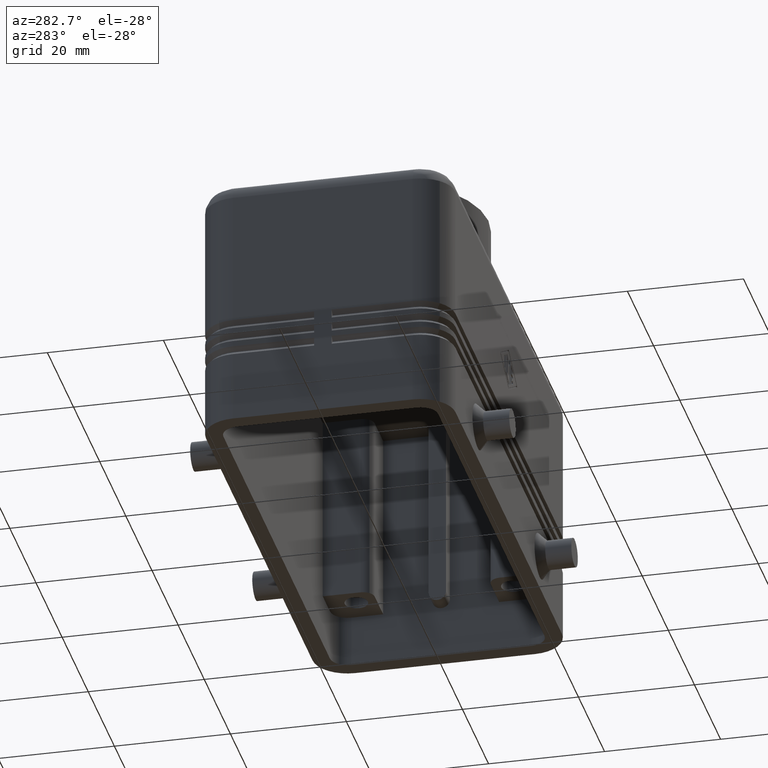
[diagram: clean part render]
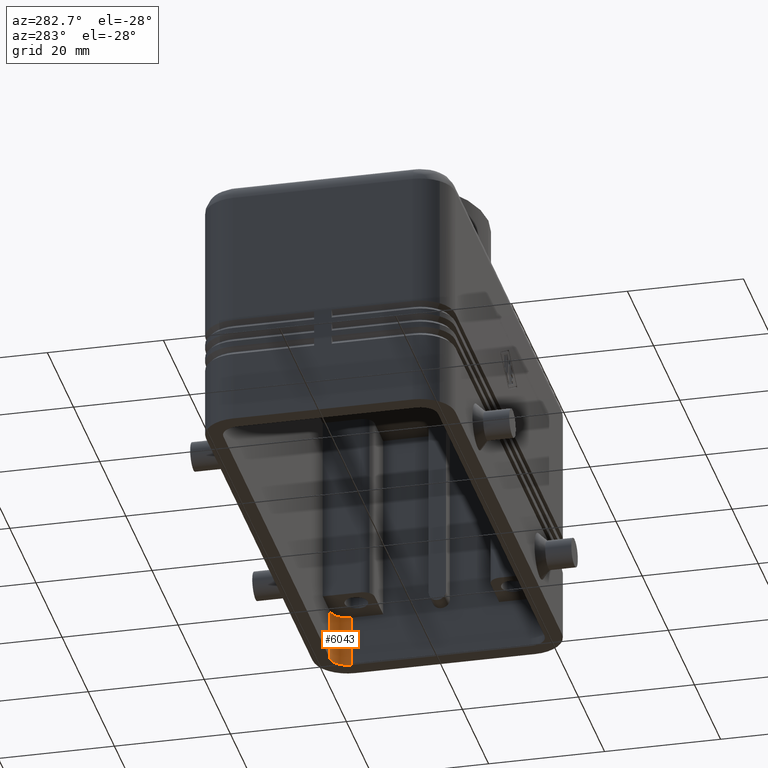
[diagram: same view with one face highlighted and labeled with its STEP entity id]
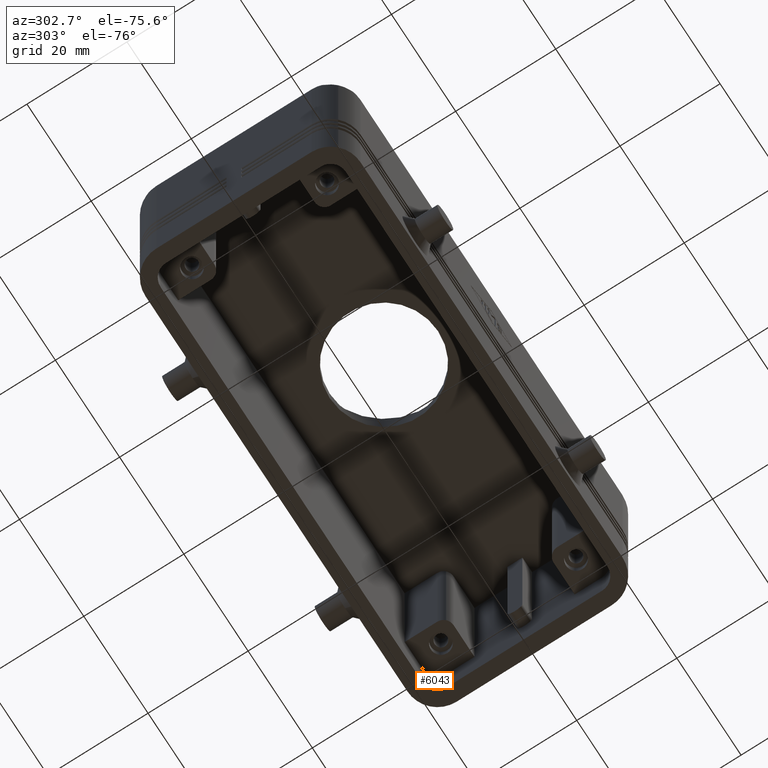
[diagram: same view with one face highlighted and labeled with its STEP entity id]
A machine part, auxiliary view. The second image highlights one B-rep face of the part: STEP entity #6043.
A second angle (auxiliary view) of the same face is appended — the face is thin or edge-on in the first view.
In plain terms, the highlighted cylindrical surface (edge-blend (fillet) strip) has radius 3 mm, axis along (0, 0, 1).
Its self-contained STEP definition (entity closure, byte-faithful):
#3579=CARTESIAN_POINT('',(43.750000000000000,15.499999999999998,9.0));
#3580=VERTEX_POINT('',#3579);
#3587=CARTESIAN_POINT('',(43.750000000000000,15.499999999999998,0.0));
#3588=VERTEX_POINT('',#3587);
#3589=CARTESIAN_POINT('',(43.750000000000000,15.499999999999998,0.0));
#3590=DIRECTION('',(0.0,0.0,1.0));
#3591=VECTOR('',#3590,9.0);
#3592=LINE('',#3589,#3591);
#3593=EDGE_CURVE('',#3588,#3580,#3592,.T.);
#5960=CARTESIAN_POINT('',(40.750000000000000,18.500000000000000,9.0));
#5961=VERTEX_POINT('',#5960);
#5968=CARTESIAN_POINT('',(40.750000000000000,15.499999999999998,9.0));
#5969=DIRECTION('',(0.0,0.0,-1.0));
#5970=DIRECTION('',(1.0,0.0,0.0));
#5971=AXIS2_PLACEMENT_3D('',#5968,#5969,#5970);
#5972=CIRCLE('',#5971,3.000000000000000);
#5973=EDGE_CURVE('',#5961,#3580,#5972,.T.);
#6019=CARTESIAN_POINT('',(40.750000000000000,15.499999999999998,0.0));
#6020=DIRECTION('',(0.0,0.0,1.0));
#6021=DIRECTION('',(1.0,0.0,0.0));
#6022=AXIS2_PLACEMENT_3D('',#6019,#6020,#6021);
#6023=CYLINDRICAL_SURFACE('',#6022,3.000000000000000);
#6024=ORIENTED_EDGE('',*,*,#5973,.F.);
#6025=CARTESIAN_POINT('',(40.750000000000000,18.500000000000000,0.0));
#6026=VERTEX_POINT('',#6025);
#6027=CARTESIAN_POINT('',(40.750000000000000,18.500000000000000,0.0));
#6028=DIRECTION('',(0.0,0.0,1.0));
#6029=VECTOR('',#6028,9.0);
#6030=LINE('',#6027,#6029);
#6031=EDGE_CURVE('',#6026,#5961,#6030,.T.);
#6032=ORIENTED_EDGE('',*,*,#6031,.F.);
#6033=CARTESIAN_POINT('',(40.750000000000000,15.499999999999998,0.0));
#6034=DIRECTION('',(0.0,0.0,1.0));
#6035=DIRECTION('',(1.0,0.0,0.0));
#6036=AXIS2_PLACEMENT_3D('',#6033,#6034,#6035);
#6037=CIRCLE('',#6036,3.000000000000000);
#6038=EDGE_CURVE('',#3588,#6026,#6037,.T.);
#6039=ORIENTED_EDGE('',*,*,#6038,.F.);
#6040=ORIENTED_EDGE('',*,*,#3593,.T.);
#6041=EDGE_LOOP('',(#6024,#6032,#6039,#6040));
#6042=FACE_OUTER_BOUND('',#6041,.T.);
#6043=ADVANCED_FACE('',(#6042),#6023,.F.);